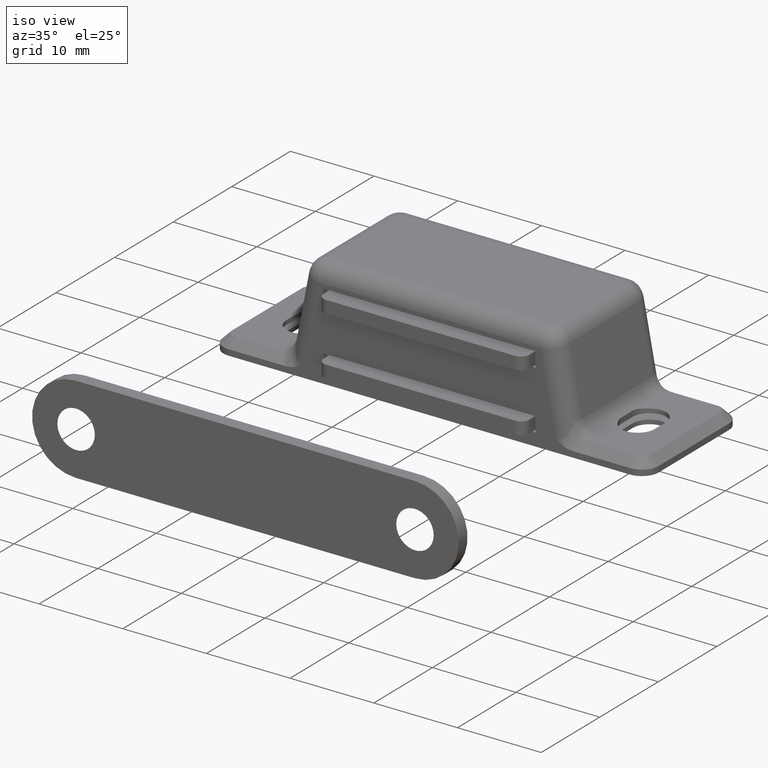
[diagram: clean part render]
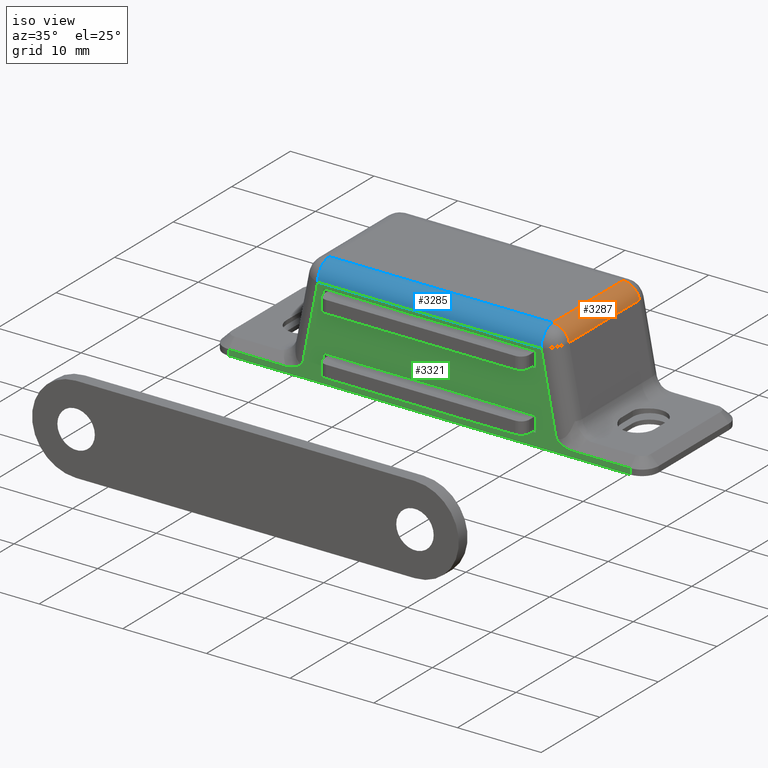
[diagram: same view with three faces highlighted in distinct colors, each labeled with its STEP entity id]
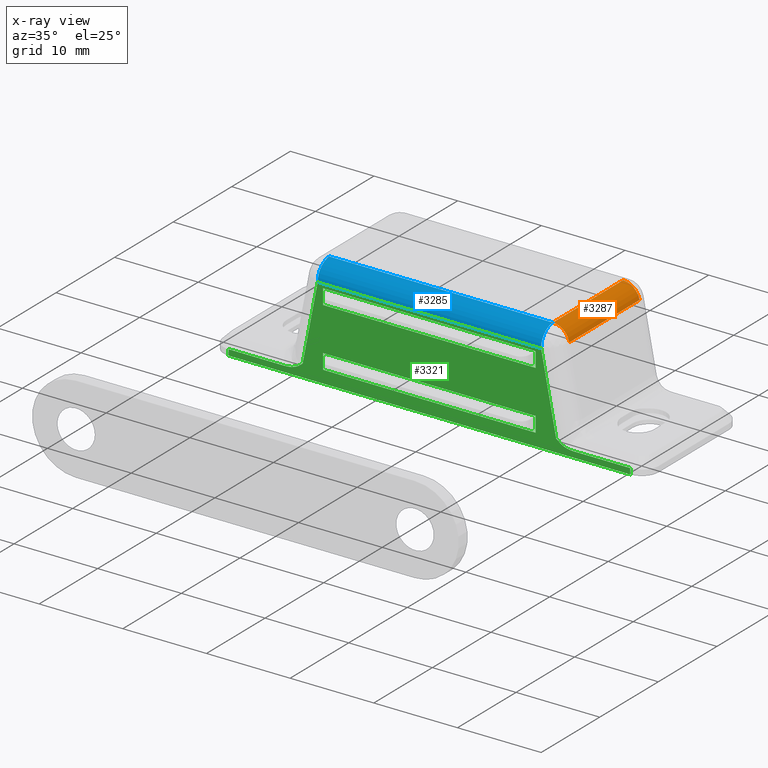
[diagram: x-ray of the same camera — body ghosted, the three highlighted faces saturated]
A machine part, iso view with three faces highlighted in distinct colors.
The next image is the same camera in x-ray (body ghosted, the three faces saturated) — at least one of them is partly hidden behind the body in this view.
Their STEP definitions:

[orange] entity #3287 — the highlighted cylindrical surface (edge-blend (fillet) strip) has radius 2 mm, axis along (0, 1, 0).
#304=FACE_OUTER_BOUND('',#501,.T.);
#501=EDGE_LOOP('',(#2520,#2521,#2522,#2523));
#782=LINE('',#5389,#1078);
#784=LINE('',#5400,#1080);
#1078=VECTOR('',#4092,12.);
#1080=VECTOR('',#4106,12.);
#1317=CIRCLE('',#3542,2.);
#1319=CIRCLE('',#3545,2.);
#1503=VERTEX_POINT('',#5381);
#1505=VERTEX_POINT('',#5387);
#1507=VERTEX_POINT('',#5395);
#1508=VERTEX_POINT('',#5399);
#1881=EDGE_CURVE('',#1503,#1505,#782,.T.);
#1884=EDGE_CURVE('',#1507,#1505,#1317,.T.);
#1886=EDGE_CURVE('',#1507,#1508,#784,.T.);
#1887=EDGE_CURVE('',#1508,#1503,#1319,.T.);
#2520=ORIENTED_EDGE('',*,*,#1884,.F.);
#2521=ORIENTED_EDGE('',*,*,#1886,.T.);
#2522=ORIENTED_EDGE('',*,*,#1887,.T.);
#2523=ORIENTED_EDGE('',*,*,#1881,.T.);
#3180=CYLINDRICAL_SURFACE('',#3544,2.);
#3287=ADVANCED_FACE('',(#304),#3180,.T.);
#3542=AXIS2_PLACEMENT_3D('',#5396,#4100,#4101);
#3544=AXIS2_PLACEMENT_3D('',#5398,#4104,#4105);
#3545=AXIS2_PLACEMENT_3D('',#5401,#4107,#4108);
#4092=DIRECTION('',(0.,-1.,0.));
#4100=DIRECTION('center_axis',(0.,-1.,0.));
#4101=DIRECTION('ref_axis',(0.98162718344766,0.,0.190808995376564));
#4104=DIRECTION('center_axis',(0.,1.,0.));
#4105=DIRECTION('ref_axis',(0.636078220277758,0.,0.771624583387725));
#4106=DIRECTION('',(0.,1.,0.));
#4107=DIRECTION('center_axis',(0.,-1.,0.));
#4108=DIRECTION('ref_axis',(0.98162718344766,0.,0.190808995376563));
#5381=CARTESIAN_POINT('',(13.3513272283649,6.,12.8));
#5387=CARTESIAN_POINT('',(13.3513272283649,-6.,12.8));
#5389=CARTESIAN_POINT('',(13.3513272283649,0.,12.8));
#5395=CARTESIAN_POINT('',(15.3145815952603,-6.,11.1816179907531));
#5396=CARTESIAN_POINT('Origin',(13.3513272283649,-6.,10.8));
#5398=CARTESIAN_POINT('Origin',(13.3513272283649,0.,10.8));
#5399=CARTESIAN_POINT('',(15.3145815952603,6.,11.1816179907531));
#5400=CARTESIAN_POINT('',(15.3145815952603,0.,11.1816179907531));
#5401=CARTESIAN_POINT('Origin',(13.3513272283649,6.,10.8));

[blue] entity #3285 — the highlighted cylindrical surface (edge-blend (fillet) strip) has radius 2 mm, axis along (-1, 0, 0).
#302=FACE_OUTER_BOUND('',#499,.T.);
#499=EDGE_LOOP('',(#2513,#2514,#2515,#2516));
#781=LINE('',#5388,#1077);
#783=LINE('',#5392,#1079);
#1077=VECTOR('',#4091,26.7026544567298);
#1079=VECTOR('',#4095,26.7026544567298);
#1311=CIRCLE('',#3530,2.);
#1316=CIRCLE('',#3540,2.);
#1497=VERTEX_POINT('',#5364);
#1499=VERTEX_POINT('',#5367);
#1505=VERTEX_POINT('',#5387);
#1506=VERTEX_POINT('',#5391);
#1871=EDGE_CURVE('',#1499,#1497,#1311,.T.);
#1880=EDGE_CURVE('',#1505,#1497,#781,.T.);
#1882=EDGE_CURVE('',#1499,#1506,#783,.T.);
#1883=EDGE_CURVE('',#1505,#1506,#1316,.T.);
#2513=ORIENTED_EDGE('',*,*,#1871,.F.);
#2514=ORIENTED_EDGE('',*,*,#1882,.T.);
#2515=ORIENTED_EDGE('',*,*,#1883,.F.);
#2516=ORIENTED_EDGE('',*,*,#1880,.T.);
#3179=CYLINDRICAL_SURFACE('',#3539,2.);
#3285=ADVANCED_FACE('',(#302),#3179,.T.);
#3530=AXIS2_PLACEMENT_3D('',#5369,#4069,#4070);
#3539=AXIS2_PLACEMENT_3D('',#5390,#4093,#4094);
#3540=AXIS2_PLACEMENT_3D('',#5393,#4096,#4097);
#4069=DIRECTION('center_axis',(-1.,0.,0.));
#4070=DIRECTION('ref_axis',(0.,-0.707106781186548,0.707106781186547));
#4091=DIRECTION('',(-1.,0.,0.));
#4093=DIRECTION('center_axis',(-1.,0.,0.));
#4094=DIRECTION('ref_axis',(0.,-0.707106781186548,0.707106781186547));
#4095=DIRECTION('',(1.,0.,0.));
#4096=DIRECTION('center_axis',(1.,0.,0.));
#4097=DIRECTION('ref_axis',(0.,-0.707106781186548,0.707106781186547));
#5364=CARTESIAN_POINT('',(-13.3513272283649,-6.,12.8));
#5367=CARTESIAN_POINT('',(-13.3513272283649,-8.,10.8));
#5369=CARTESIAN_POINT('Origin',(-13.3513272283649,-6.,10.8));
#5387=CARTESIAN_POINT('',(13.3513272283649,-6.,12.8));
#5388=CARTESIAN_POINT('',(-7.49999999999995,-6.,12.8));
#5390=CARTESIAN_POINT('Origin',(-7.49999999999995,-6.,10.8));
#5391=CARTESIAN_POINT('',(13.3513272283649,-8.,10.8));
#5392=CARTESIAN_POINT('',(-7.49999999999995,-8.,10.8));
#5393=CARTESIAN_POINT('Origin',(13.3513272283649,-6.,10.8));

[green] entity #3321 — the highlighted planar face has unit normal (0, -1, 0).
#65=FACE_BOUND('',#537,.T.);
#66=FACE_BOUND('',#538,.T.);
#179=PLANE('',#3606);
#338=FACE_OUTER_BOUND('',#536,.T.);
#536=EDGE_LOOP('',(#2703,#2704,#2705,#2706,#2707,#2708,#2709,#2710,#2711,
#2712));
#537=EDGE_LOOP('',(#2713,#2714,#2715,#2716));
#538=EDGE_LOOP('',(#2717,#2718,#2719,#2720));
#657=B_SPLINE_CURVE_WITH_KNOTS('',3,(#5445,#5446,#5447,#5448,#5449,#5450,
#5451,#5452,#5453,#5454),.UNSPECIFIED.,.F.,.F.,(4,2,2,2,4),(0.,0.0192577967304007,
0.11171754373214,0.245233357018029,0.246516598699191),.UNSPECIFIED.);
#668=B_SPLINE_CURVE_WITH_KNOTS('',3,(#5738,#5739,#5740,#5741,#5742,#5743,
#5744,#5745,#5746,#5747),.UNSPECIFIED.,.F.,.F.,(4,2,2,2,4),(-0.000829260621794559,
0.,0.0863109268775503,0.145998926907606,0.158328842121731),
 .UNSPECIFIED.);
#692=LINE('',#4771,#988);
#695=LINE('',#4777,#991);
#698=LINE('',#4783,#994);
#701=LINE('',#4787,#997);
#704=LINE('',#4795,#1000);
#707=LINE('',#4801,#1003);
#710=LINE('',#4807,#1006);
#713=LINE('',#4811,#1009);
#783=LINE('',#5392,#1079);
#788=LINE('',#5412,#1084);
#804=LINE('',#5807,#1100);
#807=LINE('',#5811,#1103);
#812=LINE('',#5821,#1108);
#827=LINE('',#5866,#1123);
#828=LINE('',#5869,#1124);
#829=LINE('',#5871,#1125);
#988=VECTOR('',#3782,1.8);
#991=VECTOR('',#3787,25.4);
#994=VECTOR('',#3792,1.8);
#997=VECTOR('',#3797,25.4);
#1000=VECTOR('',#3802,1.8);
#1003=VECTOR('',#3807,25.4);
#1006=VECTOR('',#3812,1.8);
#1009=VECTOR('',#3817,25.4);
#1079=VECTOR('',#4095,26.7026544567298);
#1084=VECTOR('',#4120,9.445106076515);
#1100=VECTOR('',#4200,6.83765084888195);
#1103=VECTOR('',#4205,9.44510607651506);
#1108=VECTOR('',#4218,6.83765084888194);
#1123=VECTOR('',#4267,48.);
#1124=VECTOR('',#4272,0.699999999999995);
#1125=VECTOR('',#4275,0.699999999999985);
#1408=VERTEX_POINT('',#4768);
#1409=VERTEX_POINT('',#4770);
#1411=VERTEX_POINT('',#4776);
#1413=VERTEX_POINT('',#4782);
#1416=VERTEX_POINT('',#4792);
#1417=VERTEX_POINT('',#4794);
#1419=VERTEX_POINT('',#4800);
#1421=VERTEX_POINT('',#4806);
#1499=VERTEX_POINT('',#5367);
#1506=VERTEX_POINT('',#5391);
#1511=VERTEX_POINT('',#5411);
#1514=VERTEX_POINT('',#5442);
#1515=VERTEX_POINT('',#5444);
#1541=VERTEX_POINT('',#5737);
#1550=VERTEX_POINT('',#5806);
#1551=VERTEX_POINT('',#5819);
#1563=VERTEX_POINT('',#5863);
#1564=VERTEX_POINT('',#5865);
#1720=EDGE_CURVE('',#1409,#1408,#692,.T.);
#1723=EDGE_CURVE('',#1411,#1409,#695,.T.);
#1726=EDGE_CURVE('',#1413,#1411,#698,.T.);
#1729=EDGE_CURVE('',#1408,#1413,#701,.T.);
#1732=EDGE_CURVE('',#1417,#1416,#704,.T.);
#1735=EDGE_CURVE('',#1419,#1417,#707,.T.);
#1738=EDGE_CURVE('',#1421,#1419,#710,.T.);
#1741=EDGE_CURVE('',#1416,#1421,#713,.T.);
#1882=EDGE_CURVE('',#1499,#1506,#783,.T.);
#1892=EDGE_CURVE('',#1506,#1511,#788,.T.);
#1896=EDGE_CURVE('',#1514,#1515,#657,.T.);
#1932=EDGE_CURVE('',#1511,#1541,#668,.T.);
#1948=EDGE_CURVE('',#1541,#1550,#804,.T.);
#1951=EDGE_CURVE('',#1515,#1499,#807,.T.);
#1956=EDGE_CURVE('',#1551,#1514,#812,.T.);
#1978=EDGE_CURVE('',#1564,#1563,#827,.T.);
#1980=EDGE_CURVE('',#1564,#1551,#828,.T.);
#1981=EDGE_CURVE('',#1550,#1563,#829,.T.);
#2703=ORIENTED_EDGE('',*,*,#1956,.F.);
#2704=ORIENTED_EDGE('',*,*,#1980,.F.);
#2705=ORIENTED_EDGE('',*,*,#1978,.T.);
#2706=ORIENTED_EDGE('',*,*,#1981,.F.);
#2707=ORIENTED_EDGE('',*,*,#1948,.F.);
#2708=ORIENTED_EDGE('',*,*,#1932,.F.);
#2709=ORIENTED_EDGE('',*,*,#1892,.F.);
#2710=ORIENTED_EDGE('',*,*,#1882,.F.);
#2711=ORIENTED_EDGE('',*,*,#1951,.F.);
#2712=ORIENTED_EDGE('',*,*,#1896,.F.);
#2713=ORIENTED_EDGE('',*,*,#1726,.T.);
#2714=ORIENTED_EDGE('',*,*,#1723,.T.);
#2715=ORIENTED_EDGE('',*,*,#1720,.T.);
#2716=ORIENTED_EDGE('',*,*,#1729,.T.);
#2717=ORIENTED_EDGE('',*,*,#1738,.T.);
#2718=ORIENTED_EDGE('',*,*,#1735,.T.);
#2719=ORIENTED_EDGE('',*,*,#1732,.T.);
#2720=ORIENTED_EDGE('',*,*,#1741,.T.);
#3321=ADVANCED_FACE('',(#338,#65,#66),#179,.T.);
#3606=AXIS2_PLACEMENT_3D('',#5870,#4273,#4274);
#3782=DIRECTION('',(0.,0.,1.));
#3787=DIRECTION('',(-1.,0.,0.));
#3792=DIRECTION('',(0.,0.,-1.));
#3797=DIRECTION('',(1.,0.,0.));
#3802=DIRECTION('',(0.,0.,1.));
#3807=DIRECTION('',(-1.,0.,0.));
#3812=DIRECTION('',(0.,0.,-1.));
#3817=DIRECTION('',(1.,0.,0.));
#4095=DIRECTION('',(1.,0.,0.));
#4120=DIRECTION('',(0.190808995376563,0.,-0.98162718344766));
#4200=DIRECTION('',(1.,0.,-1.31834909217733E-15));
#4205=DIRECTION('',(0.190808995376562,0.,0.981627183447661));
#4218=DIRECTION('',(1.,0.,-4.95950372771472E-15));
#4267=DIRECTION('',(1.,0.,0.));
#4272=DIRECTION('',(2.61228946970624E-15,0.,1.));
#4273=DIRECTION('center_axis',(0.,-1.,0.));
#4274=DIRECTION('ref_axis',(0.,0.,-1.));
#4275=DIRECTION('',(-2.61228946970625E-15,0.,-1.));
#4768=CARTESIAN_POINT('',(-12.7,-8.,10.3));
#4770=CARTESIAN_POINT('',(-12.7,-8.,8.5));
#4771=CARTESIAN_POINT('',(-12.7,-8.,7.45));
#4776=CARTESIAN_POINT('',(12.7,-8.,8.5));
#4777=CARTESIAN_POINT('',(6.35,-8.,8.5));
#4782=CARTESIAN_POINT('',(12.7,-8.,10.3));
#4783=CARTESIAN_POINT('',(12.7,-8.,8.35));
#4787=CARTESIAN_POINT('',(-6.35,-8.,10.3));
#4792=CARTESIAN_POINT('',(-12.7,-8.,3.3));
#4794=CARTESIAN_POINT('',(-12.7,-8.,1.5));
#4795=CARTESIAN_POINT('',(-12.7,-8.,3.95));
#4800=CARTESIAN_POINT('',(12.7,-8.,1.5));
#4801=CARTESIAN_POINT('',(6.35,-8.,1.5));
#4806=CARTESIAN_POINT('',(12.7,-8.,3.3));
#4807=CARTESIAN_POINT('',(12.7,-8.,4.85));
#4811=CARTESIAN_POINT('',(-6.35,-8.,3.3));
#5367=CARTESIAN_POINT('',(-13.3513272283649,-8.,10.8));
#5391=CARTESIAN_POINT('',(13.3513272283649,-8.,10.8));
#5392=CARTESIAN_POINT('',(-7.49999999999995,-8.,10.8));
#5411=CARTESIAN_POINT('',(15.1535384300498,-8.,1.5284271247462));
#5412=CARTESIAN_POINT('',(13.3630556371955,-8.,10.7396625672498));
#5442=CARTESIAN_POINT('',(-17.1626110056329,-8.,0.699999999999962));
#5444=CARTESIAN_POINT('',(-15.1535384300498,-8.,1.52842712474614));
#5445=CARTESIAN_POINT('Ctrl Pts',(-17.1619976932549,-8.,0.699999999999964));
#5446=CARTESIAN_POINT('Ctrl Pts',(-17.0978050568897,-8.,0.700049910185894));
#5447=CARTESIAN_POINT('Ctrl Pts',(-17.0336160188432,-8.,0.702197027683092));
#5448=CARTESIAN_POINT('Ctrl Pts',(-16.6620437903234,-8.,0.726816026630241));
#5449=CARTESIAN_POINT('Ctrl Pts',(-16.3570754848677,-7.99999999999986,0.795564251414289));
#5450=CARTESIAN_POINT('Ctrl Pts',(-15.6625612561802,-7.99999999999986,1.0814052012712));
#5451=CARTESIAN_POINT('Ctrl Pts',(-15.3658540746223,-8.,1.32232883563601));
#5452=CARTESIAN_POINT('Ctrl Pts',(-15.1574988435646,-8.,1.52456988618357));
#5453=CARTESIAN_POINT('Ctrl Pts',(-15.1555175559119,-8.,1.52649739076013));
#5454=CARTESIAN_POINT('Ctrl Pts',(-15.1535384300498,-8.,1.52842712474614));
#5737=CARTESIAN_POINT('',(17.1626110056329,-8.00000000000001,0.700000000000012));
#5738=CARTESIAN_POINT('Ctrl Pts',(15.1535384300498,-8.,1.5284271247462));
#5739=CARTESIAN_POINT('Ctrl Pts',(15.1555175559978,-8.,1.52649739067638));
#5740=CARTESIAN_POINT('Ctrl Pts',(15.1574988434781,-8.,1.52456988626707));
#5741=CARTESIAN_POINT('Ctrl Pts',(15.3659256068605,-8.,1.32225940252283));
#5742=CARTESIAN_POINT('Ctrl Pts',(15.6630148290694,-7.99999999999987,1.08099339114346));
#5743=CARTESIAN_POINT('Ctrl Pts',(16.3583429767615,-7.99999999999987,0.795198821390872));
#5744=CARTESIAN_POINT('Ctrl Pts',(16.6634217468423,-8.,0.726566646341134));
#5745=CARTESIAN_POINT('Ctrl Pts',(17.0346217602318,-8.,0.702163514228063));
#5746=CARTESIAN_POINT('Ctrl Pts',(17.0983079590596,-8.,0.700049519176284));
#5747=CARTESIAN_POINT('Ctrl Pts',(17.1619976932549,-8.,0.700000000000012));
#5806=CARTESIAN_POINT('',(24.,-8.,0.699999999999985));
#5807=CARTESIAN_POINT('',(4.28940535785719,-8.,0.700000000000029));
#5811=CARTESIAN_POINT('',(-14.4418663529099,-8.,5.1896625672498));
#5819=CARTESIAN_POINT('',(-24.,-8.,0.699999999999995));
#5821=CARTESIAN_POINT('',(-6.50000000000002,-8.,0.699999999999909));
#5863=CARTESIAN_POINT('',(24.,-8.,0.));
#5865=CARTESIAN_POINT('',(-24.,-8.,0.));
#5866=CARTESIAN_POINT('',(-26.,-8.,0.));
#5869=CARTESIAN_POINT('',(-24.,-8.,3.20000000000003));
#5870=CARTESIAN_POINT('Origin',(0.,-8.,6.4));
#5871=CARTESIAN_POINT('',(24.,-8.,4.04999999999997));